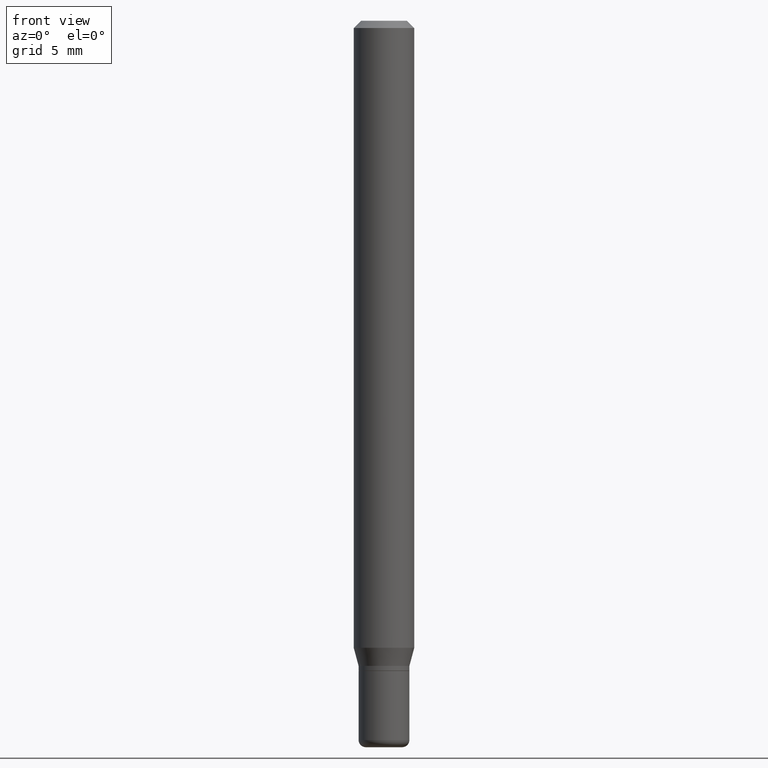
[diagram: clean part render]
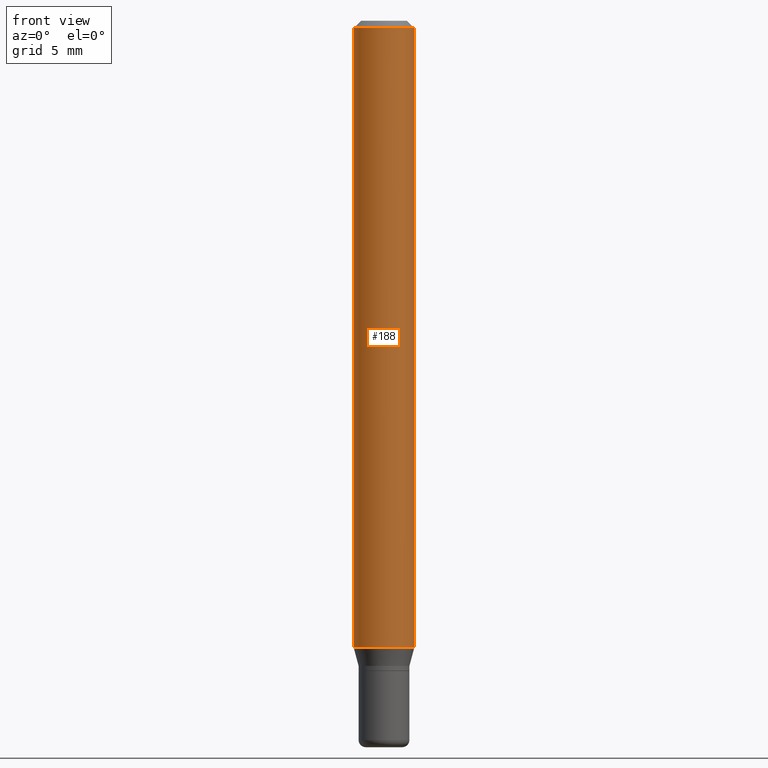
[diagram: same view with one face highlighted and labeled with its STEP entity id]
A machine part, front view. The second image highlights one B-rep face of the part: STEP entity #188.
In plain terms, the highlighted cylindrical surface (edge-blend (fillet) strip) has radius 1.5875 mm, axis along (-0, 0, 1).
Its self-contained STEP definition (entity closure, byte-faithful):
#1 = DIRECTION ( 'NONE',  ( -2.445468806185136597E-29, 3.491481338843145583E-15, 1.000000000000000000 ) ) ;
#4 = EDGE_CURVE ( 'NONE', #268, #75, #420, .T. ) ;
#6 = CARTESIAN_POINT ( 'NONE',  ( 0.06250000000000000000, -4.888073874380378612E-16, -0.01499999999999970281 ) ) ;
#14 = LINE ( 'NONE', #246, #409 ) ;
#20 = FACE_OUTER_BOUND ( 'NONE', #123, .T. ) ;
#38 = DIRECTION ( 'NONE',  ( -2.445468806185136877E-29, 3.491481338843145188E-15, 1.000000000000000000 ) ) ;
#51 = DIRECTION ( 'NONE',  ( 1.000000000000000000, -6.982962677686266711E-15, 4.876176775795935793E-29 ) ) ;
#75 = VERTEX_POINT ( 'NONE', #6 ) ;
#77 = ORIENTED_EDGE ( 'NONE', *, *, #394, .F. ) ;
#83 = VERTEX_POINT ( 'NONE', #162 ) ;
#89 = ORIENTED_EDGE ( 'NONE', *, *, #4, .F. ) ;
#96 = CARTESIAN_POINT ( 'NONE',  ( -0.06250000000000000000, -1.842271543109589479E-15, -0.01499999999999970281 ) ) ;
#122 = CARTESIAN_POINT ( 'NONE',  ( 3.166098311508524908E-29, -4.520349285836658294E-15, -1.294679491924311421 ) ) ;
#123 = EDGE_LOOP ( 'NONE', ( #77, #158, #395, #89 ) ) ;
#156 = CARTESIAN_POINT ( 'NONE',  ( 0.06250000000000000000, -4.956784453192050752E-15, -1.294679491924311421 ) ) ;
#158 = ORIENTED_EDGE ( 'NONE', *, *, #307, .T. ) ;
#162 = CARTESIAN_POINT ( 'NONE',  ( -0.06250000000000000000, -4.076260075986595677E-15, -1.294679491924311421 ) ) ;
#165 = AXIS2_PLACEMENT_3D ( 'NONE', #122, #441, #199 ) ;
#174 = EDGE_CURVE ( 'NONE', #398, #75, #14, .T. ) ;
#176 = AXIS2_PLACEMENT_3D ( 'NONE', #455, #377, #51 ) ;
#188 = ADVANCED_FACE ( 'NONE', ( #20 ), #295, .T. ) ;
#199 = DIRECTION ( 'NONE',  ( 1.000000000000000000, -6.982962677686262766E-15, 0.000000000000000000 ) ) ;
#246 = CARTESIAN_POINT ( 'NONE',  ( 0.06250000000000000000, -4.364351673553916694E-16, 3.047610484872459871E-30 ) ) ;
#262 = LINE ( 'NONE', #265, #400 ) ;
#265 = CARTESIAN_POINT ( 'NONE',  ( -0.06250000000000000000, 4.440892098500626162E-16, -3.074334431409316114E-30 ) ) ;
#268 = VERTEX_POINT ( 'NONE', #96 ) ;
#274 = DIRECTION ( 'NONE',  ( 1.000000000000000000, -6.982962677686266711E-15, 0.000000000000000000 ) ) ;
#281 = CARTESIAN_POINT ( 'NONE',  ( 3.668203209277632395E-31, -5.237222008264614861E-17, -0.01499999999999970281 ) ) ;
#295 = CYLINDRICAL_SURFACE ( 'NONE', #176, 0.06250000000000000000 ) ;
#296 = DIRECTION ( 'NONE',  ( -2.445468806185136877E-29, 3.491481338843145188E-15, 1.000000000000000000 ) ) ;
#307 = EDGE_CURVE ( 'NONE', #83, #398, #512, .T. ) ;
#354 = AXIS2_PLACEMENT_3D ( 'NONE', #281, #1, #274 ) ;
#377 = DIRECTION ( 'NONE',  ( -2.445468806185136597E-29, 3.491481338843145583E-15, 1.000000000000000000 ) ) ;
#394 = EDGE_CURVE ( 'NONE', #83, #268, #262, .T. ) ;
#395 = ORIENTED_EDGE ( 'NONE', *, *, #174, .T. ) ;
#398 = VERTEX_POINT ( 'NONE', #156 ) ;
#400 = VECTOR ( 'NONE', #38, 39.37007874015748143 ) ;
#409 = VECTOR ( 'NONE', #296, 39.37007874015748143 ) ;
#420 = CIRCLE ( 'NONE', #354, 0.06250000000000000000 ) ;
#441 = DIRECTION ( 'NONE',  ( -2.445468806185136597E-29, 3.491481338843145583E-15, 1.000000000000000000 ) ) ;
#455 = CARTESIAN_POINT ( 'NONE',  ( 0.000000000000000000, 0.000000000000000000, 0.000000000000000000 ) ) ;
#512 = CIRCLE ( 'NONE', #165, 0.06250000000000000000 ) ;